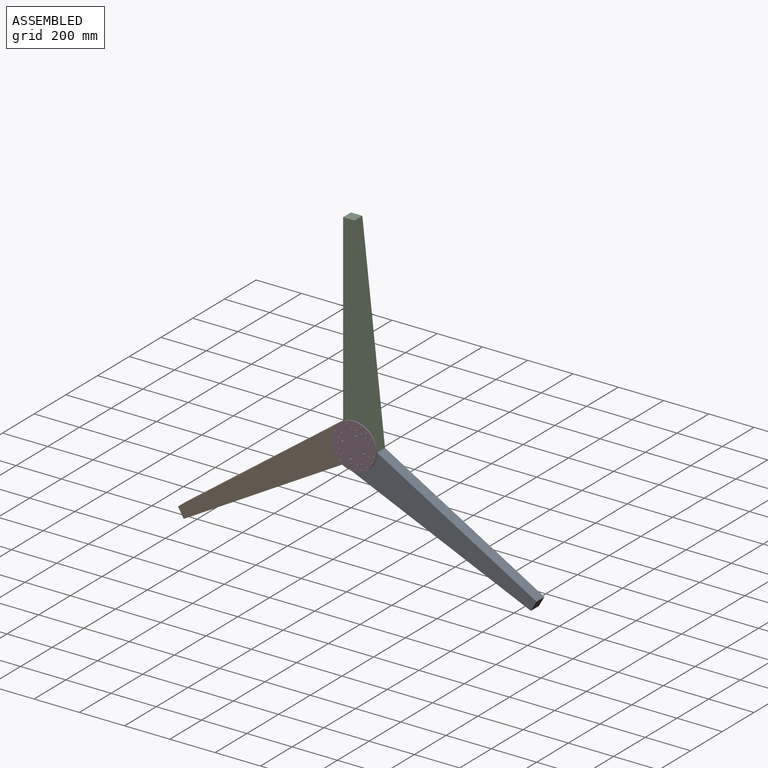
[diagram: assembled view]
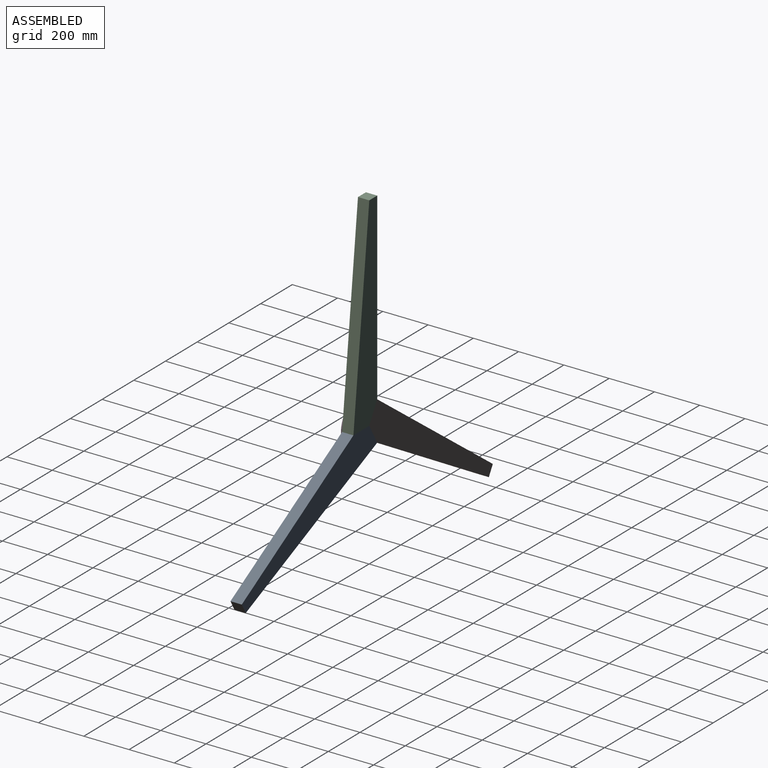
[diagram: assembled view, second angle]
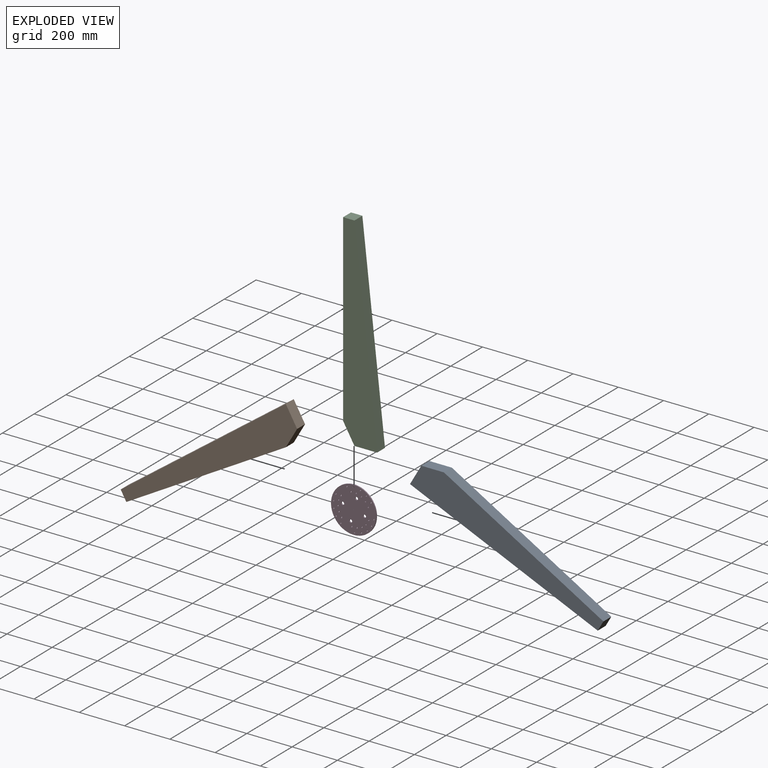
[diagram: exploded view]
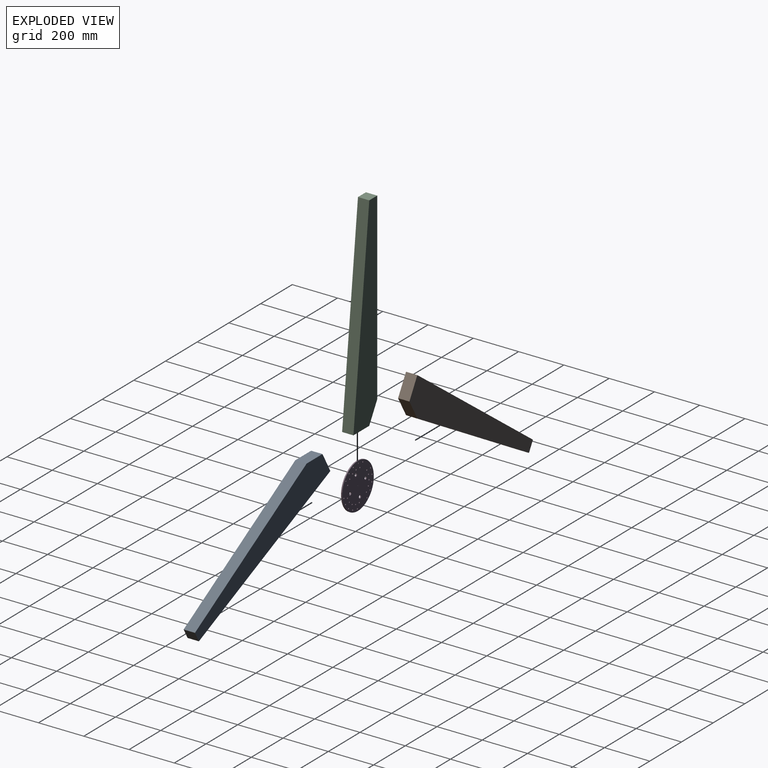
[diagram: exploded view, second angle]
ASSEMBLY  parts=4 mates=2
PART A: 7 faces, bbox 150x50x900 mm
  f0: plane 86.6x50mm, normal (-0.87,0,-0.5), area 5000mm2, adj f1,f4,f5,f6
  f1: plane 100x50mm, normal (0,0,-1), area 5000mm2, adj f0,f2,f5,f6
  f2: plane 900x100mm, normal (0.99,0,0.11), area 45276.9mm2, adj f1,f3,f5,f6
  f3: plane 50x50mm, normal (0,0,1), area 2500mm2, adj f2,f4,f5,f6
  f4: plane 813.4x50mm, normal (-1,0,0), area 40669.9mm2, adj f0,f3,f5,f6
  f5: plane 900x150mm, normal (0,-1,0), area 87834.9mm2, adj f0,f1,f2,f3,f4
  f6: plane 900x150mm, normal (0,1,0), area 87834.9mm2, adj f0,f1,f2,f3,f4
PART B: same geometry as A
PART C: same geometry as A
PART D: 38 faces, bbox 200x5x200 mm
  f0: cylinder r=6.5mm len=13mm, axis (0,1,0), area 204.2mm2, adj f36,f37
  f1: cylinder r=6.5mm len=13mm, axis (0,1,0), area 204.2mm2, adj f36,f37
  f2: cylinder r=6.5mm len=13mm, axis (0,1,0), area 204.2mm2, adj f36,f37
  f3: cylinder r=6.5mm len=13mm, axis (0,1,0), area 204.2mm2, adj f36,f37
  f4: cylinder r=2.75mm len=5.5mm, axis (0,1,0), area 86.4mm2, adj f36,f37
  f5: cylinder r=2.75mm len=5.5mm, axis (0,1,0), area 86.4mm2, adj f36,f37
  f6: cylinder r=2.75mm len=5.5mm, axis (0,1,0), area 86.4mm2, adj f36,f37
  f7: cylinder r=2.75mm len=5.5mm, axis (0,1,0), area 86.4mm2, adj f36,f37
  f8: cylinder r=2.75mm len=5.5mm, axis (0,1,0), area 86.4mm2, adj f36,f37
  f9: cylinder r=2.75mm len=5.5mm, axis (0,1,0), area 86.4mm2, adj f36,f37
  f10: cylinder r=2.75mm len=5.5mm, axis (0,1,0), area 86.4mm2, adj f36,f37
  f11: cylinder r=2.75mm len=5.5mm, axis (0,1,0), area 86.4mm2, adj f36,f37
  f12: cylinder r=2.75mm len=5.5mm, axis (0,1,0), area 86.4mm2, adj f36,f37
  f13: cylinder r=2.75mm len=5.5mm, axis (0,1,0), area 86.4mm2, adj f36,f37
  f14: cylinder r=2.75mm len=5.5mm, axis (0,1,0), area 86.4mm2, adj f36,f37
  f15: cylinder r=2.75mm len=5.5mm, axis (0,1,0), area 86.4mm2, adj f36,f37
  f16: cylinder r=2.75mm len=5.5mm, axis (0,1,0), area 86.4mm2, adj f36,f37
  f17: cylinder r=2.75mm len=5.5mm, axis (0,1,0), area 86.4mm2, adj f36,f37
  f18: cylinder r=2.75mm len=5.5mm, axis (0,1,0), area 86.4mm2, adj f36,f37
  f19: cylinder r=2.75mm len=5.5mm, axis (0,1,0), area 86.4mm2, adj f36,f37
  f20: cylinder r=2.75mm len=5.5mm, axis (0,1,0), area 86.4mm2, adj f36,f37
  f21: cylinder r=2.75mm len=5.5mm, axis (0,1,0), area 86.4mm2, adj f36,f37
  f22: cylinder r=2.75mm len=5.5mm, axis (0,1,0), area 86.4mm2, adj f36,f37
  f23: cylinder r=2.75mm len=5.5mm, axis (0,1,0), area 86.4mm2, adj f36,f37
  f24: cylinder r=2.75mm len=5.5mm, axis (0,1,0), area 86.4mm2, adj f36,f37
  f25: cylinder r=2.75mm len=5.5mm, axis (0,1,0), area 86.4mm2, adj f36,f37
  f26: cylinder r=2.75mm len=5.5mm, axis (0,1,0), area 86.4mm2, adj f36,f37
  f27: cylinder r=2.75mm len=5.5mm, axis (0,1,0), area 86.4mm2, adj f36,f37
  f28: cylinder r=2.75mm len=5.5mm, axis (0,1,0), area 86.4mm2, adj f36,f37
  f29: cylinder r=2.75mm len=5.5mm, axis (0,1,0), area 86.4mm2, adj f36,f37
  f30: cylinder r=2.75mm len=5.5mm, axis (0,1,0), area 86.4mm2, adj f36,f37
  f31: cylinder r=2.75mm len=5.5mm, axis (0,1,0), area 86.4mm2, adj f36,f37
  f32: cylinder r=2.75mm len=5.5mm, axis (0,1,0), area 86.4mm2, adj f36,f37
  f33: cylinder r=2.75mm len=5.5mm, axis (0,1,0), area 86.4mm2, adj f36,f37
  f34: cylinder r=1mm len=5mm, axis (0,1,0), area 31.4mm2, adj f36,f37
  f35: cylinder r=100mm len=200mm, axis (0,1,0), area 3141.6mm2, adj f36,f37
  f36: plane 200x200mm, normal (0,-1,0), area 30169.1mm2, adj f0,f1,f2,f3,f4,f5,f6,f7
  f37: plane 200x200mm, normal (0,1,0), area 30169.1mm2, adj f0,f1,f2,f3,f4,f5,f6,f7
PLACE A rot(axis=(0,1,0),120deg) t=(-47.37,167.77,-112.21)mm
PLACE B rot(axis=(0,-1,0),120deg) t=(-47.37,167.77,-112.21)mm
PLACE C t=(-47.37,167.77,-112.21)mm
PLACE D t=(-47.37,117.77,-112.21)mm
MATE planar B.f5 <-> D.f35  axis (0,-1,0) through (-382.07,117.77,-299.57)mm
MATE slider D.f35 <-> C.f5  axis (0,-1,0) through (-47.37,112.77,-112.21)mm
